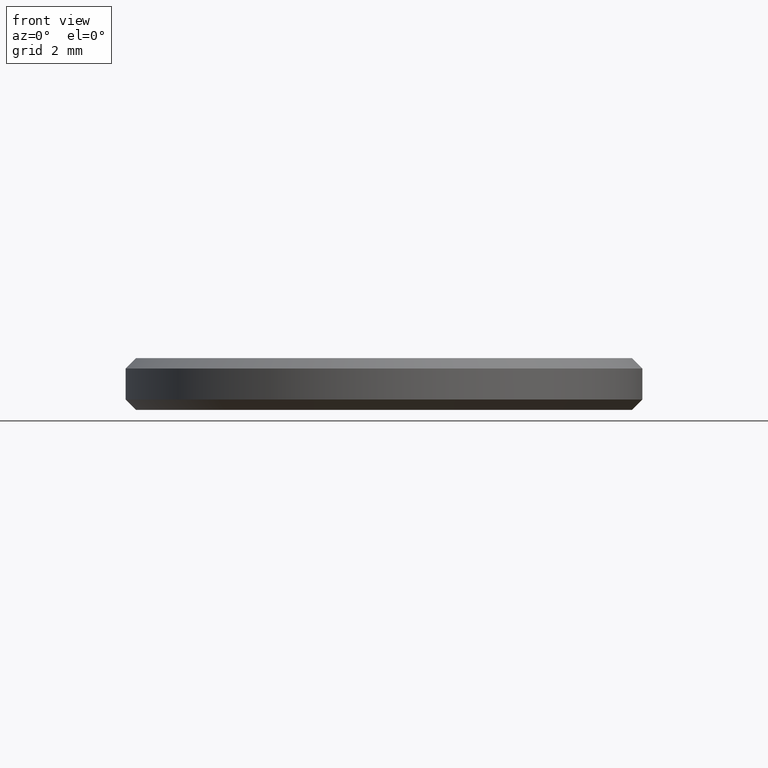
[diagram: clean part render]
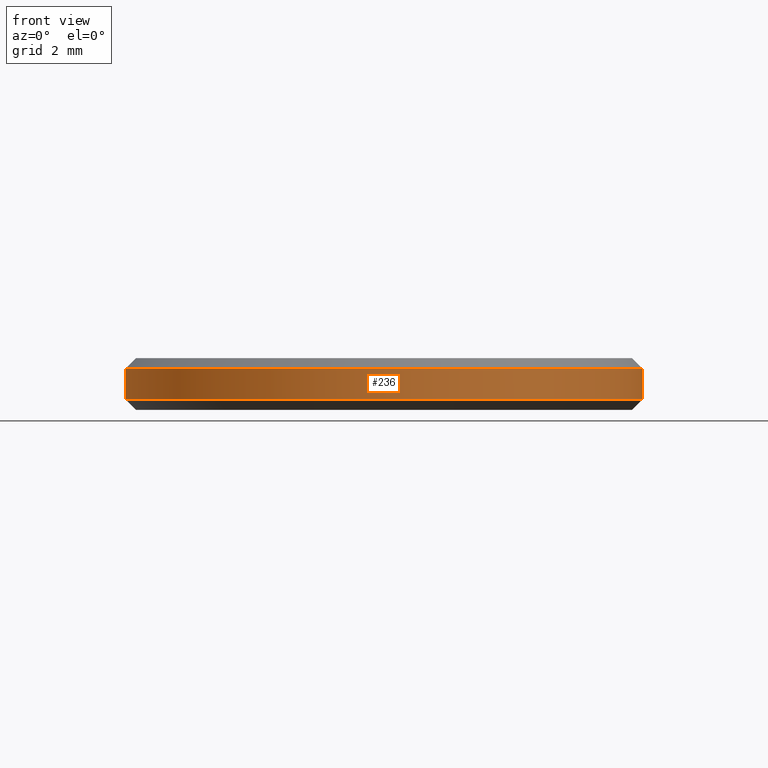
[diagram: same view with one face highlighted and labeled with its STEP entity id]
A machine part, front view. The second image highlights one B-rep face of the part: STEP entity #236.
In plain terms, the highlighted cylindrical surface (partial cylindrical patch) has radius 5 mm, axis along (-0, -0, -1).
Its self-contained STEP definition (entity closure, byte-faithful):
#1 = ORIENTED_EDGE ( 'NONE', *, *, #38, .F. ) ;
#4 = AXIS2_PLACEMENT_3D ( 'NONE', #93, #124, #127 ) ;
#11 = VECTOR ( 'NONE', #219, 1000.000000000000000 ) ;
#32 = DIRECTION ( 'NONE',  ( 1.000000000000000000, 0.000000000000000000, 0.000000000000000000 ) ) ;
#36 = ORIENTED_EDGE ( 'NONE', *, *, #47, .T. ) ;
#38 = EDGE_CURVE ( 'NONE', #129, #235, #196, .T. ) ;
#39 = CARTESIAN_POINT ( 'NONE',  ( 5.000000000000000000, 6.123233995736766282E-16, 0.8000000000000012657 ) ) ;
#40 = CYLINDRICAL_SURFACE ( 'NONE', #73, 5.000000000000000000 ) ;
#45 = AXIS2_PLACEMENT_3D ( 'NONE', #68, #103, #32 ) ;
#47 = EDGE_CURVE ( 'NONE', #129, #191, #117, .T. ) ;
#68 = CARTESIAN_POINT ( 'NONE',  ( 0.000000000000000000, 0.000000000000000000, 0.1999999999999996503 ) ) ;
#73 = AXIS2_PLACEMENT_3D ( 'NONE', #203, #202, #188 ) ;
#80 = FACE_OUTER_BOUND ( 'NONE', #144, .T. ) ;
#82 = EDGE_CURVE ( 'NONE', #84, #235, #215, .T. ) ;
#84 = VERTEX_POINT ( 'NONE', #143 ) ;
#93 = CARTESIAN_POINT ( 'NONE',  ( 0.000000000000000000, 0.000000000000000000, 0.8000000000000012657 ) ) ;
#102 = DIRECTION ( 'NONE',  ( -0.000000000000000000, -0.000000000000000000, -1.000000000000000000 ) ) ;
#103 = DIRECTION ( 'NONE',  ( -0.000000000000000000, -0.000000000000000000, 1.000000000000000000 ) ) ;
#104 = EDGE_CURVE ( 'NONE', #191, #84, #197, .T. ) ;
#114 = CARTESIAN_POINT ( 'NONE',  ( 5.000000000000000000, 6.123233995736766282E-16, 0.1999999999999996503 ) ) ;
#117 = CIRCLE ( 'NONE', #4, 5.000000000000000000 ) ;
#122 = ORIENTED_EDGE ( 'NONE', *, *, #82, .T. ) ;
#124 = DIRECTION ( 'NONE',  ( 0.000000000000000000, 0.000000000000000000, -1.000000000000000000 ) ) ;
#127 = DIRECTION ( 'NONE',  ( 1.000000000000000000, 0.000000000000000000, 0.000000000000000000 ) ) ;
#129 = VERTEX_POINT ( 'NONE', #39 ) ;
#143 = CARTESIAN_POINT ( 'NONE',  ( -5.000000000000000000, 0.000000000000000000, 0.1999999999999996503 ) ) ;
#144 = EDGE_LOOP ( 'NONE', ( #1, #36, #151, #122 ) ) ;
#151 = ORIENTED_EDGE ( 'NONE', *, *, #104, .T. ) ;
#163 = CARTESIAN_POINT ( 'NONE',  ( 5.000000000000000000, 6.123233995736766282E-16, 1.000000000000000000 ) ) ;
#171 = VECTOR ( 'NONE', #102, 1000.000000000000000 ) ;
#173 = CARTESIAN_POINT ( 'NONE',  ( -5.000000000000000000, 0.000000000000000000, 1.000000000000000000 ) ) ;
#188 = DIRECTION ( 'NONE',  ( -1.000000000000000000, 0.000000000000000000, 0.000000000000000000 ) ) ;
#190 = CARTESIAN_POINT ( 'NONE',  ( -5.000000000000000000, 0.000000000000000000, 0.8000000000000012657 ) ) ;
#191 = VERTEX_POINT ( 'NONE', #190 ) ;
#196 = LINE ( 'NONE', #163, #11 ) ;
#197 = LINE ( 'NONE', #173, #171 ) ;
#202 = DIRECTION ( 'NONE',  ( -0.000000000000000000, -0.000000000000000000, -1.000000000000000000 ) ) ;
#203 = CARTESIAN_POINT ( 'NONE',  ( 0.000000000000000000, 0.000000000000000000, 1.000000000000000000 ) ) ;
#215 = CIRCLE ( 'NONE', #45, 5.000000000000000000 ) ;
#219 = DIRECTION ( 'NONE',  ( -0.000000000000000000, -0.000000000000000000, -1.000000000000000000 ) ) ;
#235 = VERTEX_POINT ( 'NONE', #114 ) ;
#236 = ADVANCED_FACE ( 'NONE', ( #80 ), #40, .T. ) ;